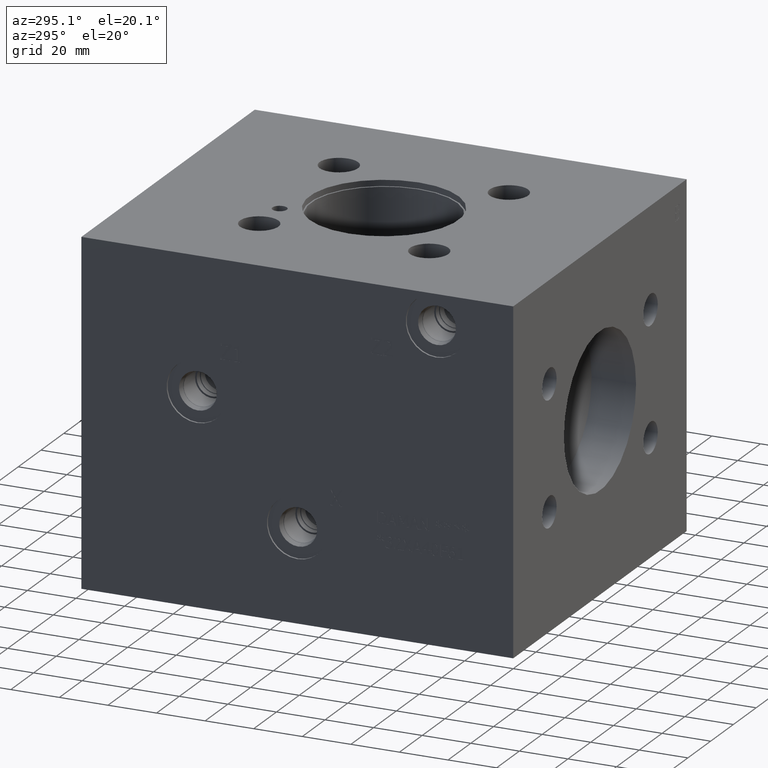
[diagram: clean part render]
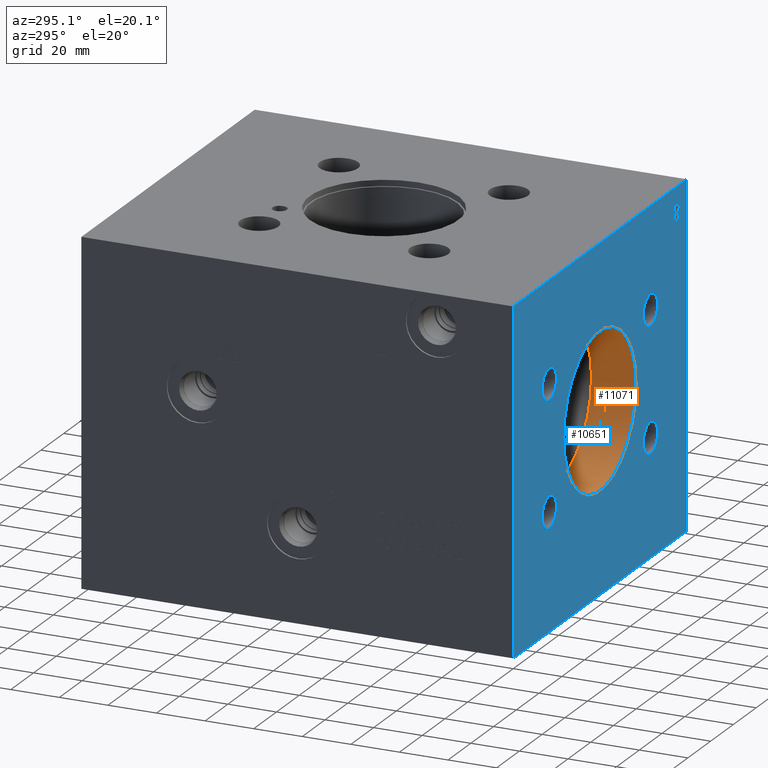
[diagram: same view with the hole feature highlighted: cylindrical wall and planar end face, labeled with their STEP entity ids]
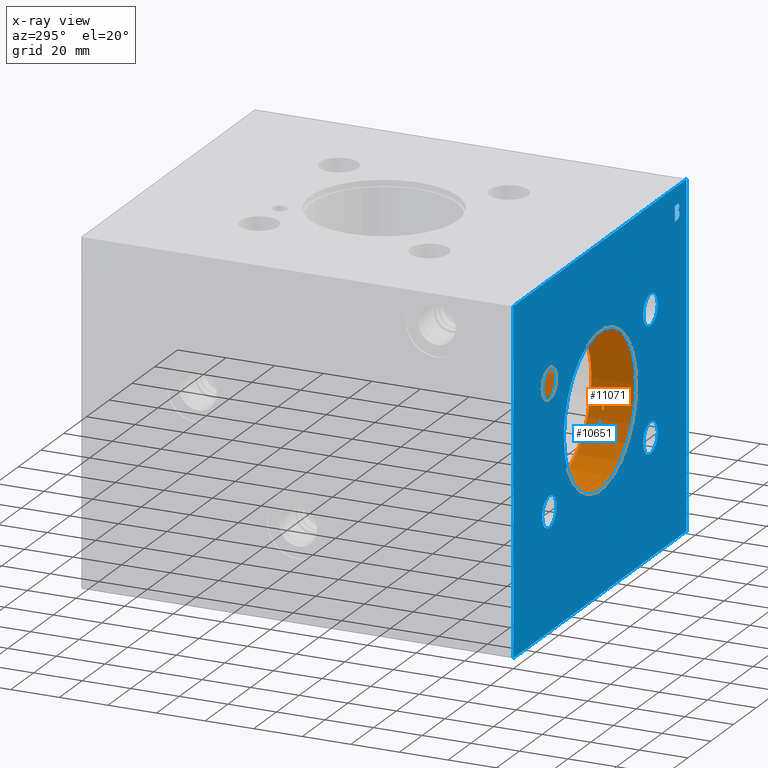
[diagram: x-ray of the same camera — body ghosted, the hole faces saturated]
A machine part, auxiliary view. The highlighted faces form one hole feature of diameter 63.5 mm: the cylindrical wall (entity #11071, orange) and its adjacent planar end face (entity #10651, blue) — they share a circular edge in the B-rep.
The next image is the same camera in x-ray (body ghosted, the hole faces saturated) — the bore reads through the body.
Wall:
#31=CYLINDRICAL_SURFACE('',#11637,31.75);
#436=CIRCLE('',#11247,31.75);
#437=CIRCLE('',#11248,31.75);
#487=CIRCLE('',#11635,31.75);
#488=CIRCLE('',#11636,31.75);
#1217=FACE_OUTER_BOUND('',#1846,.T.);
#1846=EDGE_LOOP('',(#9271,#9272,#9273,#9274,#9275,#9276));
#2998=LINE('',#18318,#4087);
#4087=VECTOR('',#13813,31.75);
#4273=VERTEX_POINT('',#14927);
#4274=VERTEX_POINT('',#14928);
#5037=VERTEX_POINT('',#18311);
#5038=VERTEX_POINT('',#18312);
#5370=EDGE_CURVE('',#4273,#4274,#436,.T.);
#5371=EDGE_CURVE('',#4274,#4273,#437,.T.);
#6505=EDGE_CURVE('',#5037,#5038,#487,.T.);
#6507=EDGE_CURVE('',#5038,#5037,#488,.T.);
#6508=EDGE_CURVE('',#4274,#5038,#2998,.T.);
#9271=ORIENTED_EDGE('',*,*,#5370,.F.);
#9272=ORIENTED_EDGE('',*,*,#5371,.F.);
#9273=ORIENTED_EDGE('',*,*,#6508,.T.);
#9274=ORIENTED_EDGE('',*,*,#6505,.F.);
#9275=ORIENTED_EDGE('',*,*,#6507,.F.);
#9276=ORIENTED_EDGE('',*,*,#6508,.F.);
#11071=ADVANCED_FACE('',(#1217),#31,.F.);
#11247=AXIS2_PLACEMENT_3D('',#14929,#12110,#12111);
#11248=AXIS2_PLACEMENT_3D('',#14930,#12112,#12113);
#11635=AXIS2_PLACEMENT_3D('',#18313,#13806,#13807);
#11636=AXIS2_PLACEMENT_3D('',#18316,#13809,#13810);
#11637=AXIS2_PLACEMENT_3D('',#18317,#13811,#13812);
#12110=DIRECTION('center_axis',(0.,1.,0.));
#12111=DIRECTION('ref_axis',(1.,0.,0.));
#12112=DIRECTION('center_axis',(0.,1.,0.));
#12113=DIRECTION('ref_axis',(1.,0.,0.));
#13806=DIRECTION('center_axis',(0.,-1.,0.));
#13807=DIRECTION('ref_axis',(1.,0.,0.));
#13809=DIRECTION('center_axis',(0.,-1.,0.));
#13810=DIRECTION('ref_axis',(1.,0.,0.));
#13811=DIRECTION('center_axis',(0.,-1.,0.));
#13812=DIRECTION('ref_axis',(1.,0.,0.));
#13813=DIRECTION('',(0.,1.,0.));
#14927=CARTESIAN_POINT('',(107.95,0.,73.025));
#14928=CARTESIAN_POINT('',(44.45,0.,73.025));
#14929=CARTESIAN_POINT('Origin',(76.2,0.,73.025));
#14930=CARTESIAN_POINT('Origin',(76.2,0.,73.025));
#18311=CARTESIAN_POINT('',(107.95,18.33087,73.025));
#18312=CARTESIAN_POINT('',(44.45,18.33087,73.025));
#18313=CARTESIAN_POINT('Origin',(76.2,18.33087,73.025));
#18316=CARTESIAN_POINT('Origin',(76.2,18.33087,73.025));
#18317=CARTESIAN_POINT('Origin',(76.2,9.165435,73.025));
#18318=CARTESIAN_POINT('',(44.45,9.165435,73.025));
End face:
#138=B_SPLINE_CURVE_WITH_KNOTS('',2,(#14776,#14777,#14778,#14779),
 .UNSPECIFIED.,.F.,.F.,(3,1,3),(0.,1.,2.),.UNSPECIFIED.);
#140=B_SPLINE_CURVE_WITH_KNOTS('',2,(#14803,#14804,#14805,#14806),
 .UNSPECIFIED.,.F.,.F.,(3,1,3),(0.,1.,2.),.UNSPECIFIED.);
#142=B_SPLINE_CURVE_WITH_KNOTS('',2,(#14822,#14823,#14824,#14825),
 .UNSPECIFIED.,.F.,.F.,(3,1,3),(0.,1.,2.),.UNSPECIFIED.);
#144=B_SPLINE_CURVE_WITH_KNOTS('',2,(#14841,#14842,#14843,#14844),
 .UNSPECIFIED.,.F.,.F.,(3,1,3),(0.,1.,2.),.UNSPECIFIED.);
#146=B_SPLINE_CURVE_WITH_KNOTS('',2,(#14878,#14879,#14880,#14881),
 .UNSPECIFIED.,.F.,.F.,(3,1,3),(0.,1.,2.),.UNSPECIFIED.);
#148=B_SPLINE_CURVE_WITH_KNOTS('',2,(#14896,#14897,#14898,#14899),
 .UNSPECIFIED.,.F.,.F.,(3,1,3),(0.,1.,2.),.UNSPECIFIED.);
#428=CIRCLE('',#11239,6.35);
#429=CIRCLE('',#11240,6.35);
#430=CIRCLE('',#11241,6.35);
#431=CIRCLE('',#11242,6.35);
#432=CIRCLE('',#11243,6.35);
#433=CIRCLE('',#11244,6.35);
#434=CIRCLE('',#11245,6.35);
#435=CIRCLE('',#11246,6.35);
#436=CIRCLE('',#11247,31.75);
#437=CIRCLE('',#11248,31.75);
#676=FACE_BOUND('',#1380,.T.);
#677=FACE_BOUND('',#1381,.T.);
#678=FACE_BOUND('',#1382,.T.);
#679=FACE_BOUND('',#1383,.T.);
#680=FACE_BOUND('',#1384,.T.);
#681=FACE_BOUND('',#1385,.T.);
#797=FACE_OUTER_BOUND('',#1379,.T.);
#1379=EDGE_LOOP('',(#6971,#6972,#6973,#6974));
#1380=EDGE_LOOP('',(#6975,#6976,#6977,#6978,#6979,#6980,#6981,#6982,#6983,
#6984));
#1381=EDGE_LOOP('',(#6985,#6986));
#1382=EDGE_LOOP('',(#6987,#6988));
#1383=EDGE_LOOP('',(#6989,#6990));
#1384=EDGE_LOOP('',(#6991,#6992));
#1385=EDGE_LOOP('',(#6993,#6994));
#2026=LINE('',#14536,#3115);
#2058=LINE('',#14790,#3147);
#2064=LINE('',#14853,#3153);
#2067=LINE('',#14859,#3156);
#2070=LINE('',#14865,#3159);
#2074=LINE('',#14907,#3163);
#2075=LINE('',#14909,#3164);
#2076=LINE('',#14910,#3165);
#3115=VECTOR('',#11983,10.);
#3147=VECTOR('',#12065,10.);
#3153=VECTOR('',#12073,10.);
#3156=VECTOR('',#12078,10.);
#3159=VECTOR('',#12083,10.);
#3163=VECTOR('',#12091,10.);
#3164=VECTOR('',#12092,10.);
#3165=VECTOR('',#12093,10.);
#4193=VERTEX_POINT('',#14534);
#4194=VERTEX_POINT('',#14535);
#4243=VERTEX_POINT('',#14774);
#4244=VERTEX_POINT('',#14775);
#4247=VERTEX_POINT('',#14789);
#4249=VERTEX_POINT('',#14802);
#4251=VERTEX_POINT('',#14821);
#4253=VERTEX_POINT('',#14840);
#4255=VERTEX_POINT('',#14852);
#4257=VERTEX_POINT('',#14858);
#4259=VERTEX_POINT('',#14864);
#4261=VERTEX_POINT('',#14877);
#4263=VERTEX_POINT('',#14906);
#4264=VERTEX_POINT('',#14908);
#4265=VERTEX_POINT('',#14911);
#4266=VERTEX_POINT('',#14912);
#4267=VERTEX_POINT('',#14915);
#4268=VERTEX_POINT('',#14916);
#4269=VERTEX_POINT('',#14919);
#4270=VERTEX_POINT('',#14920);
#4271=VERTEX_POINT('',#14923);
#4272=VERTEX_POINT('',#14924);
#4273=VERTEX_POINT('',#14927);
#4274=VERTEX_POINT('',#14928);
#5265=EDGE_CURVE('',#4193,#4194,#2026,.T.);
#5329=EDGE_CURVE('',#4243,#4244,#138,.T.);
#5333=EDGE_CURVE('',#4247,#4243,#2058,.T.);
#5336=EDGE_CURVE('',#4249,#4247,#140,.T.);
#5339=EDGE_CURVE('',#4251,#4249,#142,.T.);
#5342=EDGE_CURVE('',#4253,#4251,#144,.T.);
#5345=EDGE_CURVE('',#4255,#4253,#2064,.T.);
#5348=EDGE_CURVE('',#4257,#4255,#2067,.T.);
#5351=EDGE_CURVE('',#4259,#4257,#2070,.T.);
#5354=EDGE_CURVE('',#4261,#4259,#146,.T.);
#5357=EDGE_CURVE('',#4244,#4261,#148,.T.);
#5359=EDGE_CURVE('',#4194,#4263,#2074,.T.);
#5360=EDGE_CURVE('',#4264,#4263,#2075,.T.);
#5361=EDGE_CURVE('',#4193,#4264,#2076,.T.);
#5362=EDGE_CURVE('',#4265,#4266,#428,.T.);
#5363=EDGE_CURVE('',#4266,#4265,#429,.T.);
#5364=EDGE_CURVE('',#4267,#4268,#430,.T.);
#5365=EDGE_CURVE('',#4268,#4267,#431,.T.);
#5366=EDGE_CURVE('',#4269,#4270,#432,.T.);
#5367=EDGE_CURVE('',#4270,#4269,#433,.T.);
#5368=EDGE_CURVE('',#4271,#4272,#434,.T.);
#5369=EDGE_CURVE('',#4272,#4271,#435,.T.);
#5370=EDGE_CURVE('',#4273,#4274,#436,.T.);
#5371=EDGE_CURVE('',#4274,#4273,#437,.T.);
#6971=ORIENTED_EDGE('',*,*,#5265,.T.);
#6972=ORIENTED_EDGE('',*,*,#5359,.T.);
#6973=ORIENTED_EDGE('',*,*,#5360,.F.);
#6974=ORIENTED_EDGE('',*,*,#5361,.F.);
#6975=ORIENTED_EDGE('',*,*,#5329,.T.);
#6976=ORIENTED_EDGE('',*,*,#5357,.T.);
#6977=ORIENTED_EDGE('',*,*,#5354,.T.);
#6978=ORIENTED_EDGE('',*,*,#5351,.T.);
#6979=ORIENTED_EDGE('',*,*,#5348,.T.);
#6980=ORIENTED_EDGE('',*,*,#5345,.T.);
#6981=ORIENTED_EDGE('',*,*,#5342,.T.);
#6982=ORIENTED_EDGE('',*,*,#5339,.T.);
#6983=ORIENTED_EDGE('',*,*,#5336,.T.);
#6984=ORIENTED_EDGE('',*,*,#5333,.T.);
#6985=ORIENTED_EDGE('',*,*,#5362,.T.);
#6986=ORIENTED_EDGE('',*,*,#5363,.T.);
#6987=ORIENTED_EDGE('',*,*,#5364,.T.);
#6988=ORIENTED_EDGE('',*,*,#5365,.T.);
#6989=ORIENTED_EDGE('',*,*,#5366,.T.);
#6990=ORIENTED_EDGE('',*,*,#5367,.T.);
#6991=ORIENTED_EDGE('',*,*,#5368,.T.);
#6992=ORIENTED_EDGE('',*,*,#5369,.T.);
#6993=ORIENTED_EDGE('',*,*,#5370,.T.);
#6994=ORIENTED_EDGE('',*,*,#5371,.T.);
#9858=PLANE('',#11238);
#10651=ADVANCED_FACE('',(#797,#676,#677,#678,#679,#680,#681),#9858,.T.);
#11238=AXIS2_PLACEMENT_3D('',#14905,#12089,#12090);
#11239=AXIS2_PLACEMENT_3D('',#14913,#12094,#12095);
#11240=AXIS2_PLACEMENT_3D('',#14914,#12096,#12097);
#11241=AXIS2_PLACEMENT_3D('',#14917,#12098,#12099);
#11242=AXIS2_PLACEMENT_3D('',#14918,#12100,#12101);
#11243=AXIS2_PLACEMENT_3D('',#14921,#12102,#12103);
#11244=AXIS2_PLACEMENT_3D('',#14922,#12104,#12105);
#11245=AXIS2_PLACEMENT_3D('',#14925,#12106,#12107);
#11246=AXIS2_PLACEMENT_3D('',#14926,#12108,#12109);
#11247=AXIS2_PLACEMENT_3D('',#14929,#12110,#12111);
#11248=AXIS2_PLACEMENT_3D('',#14930,#12112,#12113);
#11983=DIRECTION('',(1.,0.,0.));
#12065=DIRECTION('',(0.,0.,-1.));
#12073=DIRECTION('',(1.,0.,0.));
#12078=DIRECTION('',(0.,0.,1.));
#12083=DIRECTION('',(-1.,0.,0.));
#12089=DIRECTION('center_axis',(0.,-1.,0.));
#12090=DIRECTION('ref_axis',(1.,0.,0.));
#12091=DIRECTION('',(0.,0.,1.));
#12092=DIRECTION('',(1.,0.,0.));
#12093=DIRECTION('',(0.,0.,1.));
#12094=DIRECTION('center_axis',(0.,1.,0.));
#12095=DIRECTION('ref_axis',(1.,0.,0.));
#12096=DIRECTION('center_axis',(0.,1.,0.));
#12097=DIRECTION('ref_axis',(1.,0.,0.));
#12098=DIRECTION('center_axis',(0.,1.,0.));
#12099=DIRECTION('ref_axis',(1.,0.,0.));
#12100=DIRECTION('center_axis',(0.,1.,0.));
#12101=DIRECTION('ref_axis',(1.,0.,0.));
#12102=DIRECTION('center_axis',(0.,1.,0.));
#12103=DIRECTION('ref_axis',(1.,0.,0.));
#12104=DIRECTION('center_axis',(0.,1.,0.));
#12105=DIRECTION('ref_axis',(1.,0.,0.));
#12106=DIRECTION('center_axis',(0.,1.,0.));
#12107=DIRECTION('ref_axis',(1.,0.,0.));
#12108=DIRECTION('center_axis',(0.,1.,0.));
#12109=DIRECTION('ref_axis',(1.,0.,0.));
#12110=DIRECTION('center_axis',(0.,1.,0.));
#12111=DIRECTION('ref_axis',(1.,0.,0.));
#12112=DIRECTION('center_axis',(0.,1.,0.));
#12113=DIRECTION('ref_axis',(1.,0.,0.));
#14534=CARTESIAN_POINT('',(0.,0.,0.));
#14535=CARTESIAN_POINT('',(152.4,0.,0.));
#14536=CARTESIAN_POINT('',(0.,0.,0.));
#14774=CARTESIAN_POINT('',(145.049128792777,0.,129.736314776805));
#14775=CARTESIAN_POINT('',(146.237824074762,0.,128.15653360118));
#14776=CARTESIAN_POINT('Ctrl Pts',(145.049128792777,0.,129.736314776805));
#14777=CARTESIAN_POINT('Ctrl Pts',(145.615174165151,0.,129.581938766158));
#14778=CARTESIAN_POINT('Ctrl Pts',(146.237824074762,0.,128.763745909726));
#14779=CARTESIAN_POINT('Ctrl Pts',(146.237824074762,0.,128.15653360118));
#14789=CARTESIAN_POINT('',(145.049128792777,0.,129.767189978935));
#14790=CARTESIAN_POINT('',(145.049128792777,0.,64.8835949894675));
#14802=CARTESIAN_POINT('',(145.93936378751,0.,131.125698872633));
#14803=CARTESIAN_POINT('Ctrl Pts',(145.93936378751,0.,131.125698872633));
#14804=CARTESIAN_POINT('Ctrl Pts',(145.93936378751,0.,130.678008441755));
#14805=CARTESIAN_POINT('Ctrl Pts',(145.465944021525,0.,129.967878792777));
#14806=CARTESIAN_POINT('Ctrl Pts',(145.049128792777,0.,129.767189978935));
#14821=CARTESIAN_POINT('',(145.280692808748,0.,132.298956553553));
#14822=CARTESIAN_POINT('Ctrl Pts',(145.280692808748,0.,132.298956553553));
#14823=CARTESIAN_POINT('Ctrl Pts',(145.625465899194,0.,132.118851207798));
#14824=CARTESIAN_POINT('Ctrl Pts',(145.93936378751,0.,131.527076500316));
#14825=CARTESIAN_POINT('Ctrl Pts',(145.93936378751,0.,131.125698872633));
#14840=CARTESIAN_POINT('',(143.613431893755,0.,132.556249904633));
#14841=CARTESIAN_POINT('Ctrl Pts',(143.613431893755,0.,132.556249904633));
#14842=CARTESIAN_POINT('Ctrl Pts',(144.292686340604,0.,132.556249904633));
#14843=CARTESIAN_POINT('Ctrl Pts',(144.971940787453,0.,132.468770165266));
#14844=CARTESIAN_POINT('Ctrl Pts',(145.280692808748,0.,132.298956553553));
#14852=CARTESIAN_POINT('',(141.930733377698,0.,132.556249904633));
#14853=CARTESIAN_POINT('',(70.9653666888489,0.,132.556249904633));
#14858=CARTESIAN_POINT('',(141.930733377698,0.,126.20625));
#14859=CARTESIAN_POINT('',(141.930733377698,0.,63.103125));
#14864=CARTESIAN_POINT('',(143.752370303338,0.,126.20625));
#14865=CARTESIAN_POINT('',(71.876185151669,0.,126.20625));
#14877=CARTESIAN_POINT('',(145.579153096,0.,126.720836702158));
#14878=CARTESIAN_POINT('Ctrl Pts',(145.579153096,0.,126.720836702158));
#14879=CARTESIAN_POINT('Ctrl Pts',(145.218942404489,0.,126.442959882993));
#14880=CARTESIAN_POINT('Ctrl Pts',(144.400749548057,0.,126.20625));
#14881=CARTESIAN_POINT('Ctrl Pts',(143.752370303338,0.,126.20625));
#14896=CARTESIAN_POINT('Ctrl Pts',(146.237824074762,0.,128.15653360118));
#14897=CARTESIAN_POINT('Ctrl Pts',(146.237824074762,0.,127.683113835194));
#14898=CARTESIAN_POINT('Ctrl Pts',(145.877613383251,0.,126.957546585151));
#14899=CARTESIAN_POINT('Ctrl Pts',(145.579153096,0.,126.720836702158));
#14905=CARTESIAN_POINT('Origin',(0.,0.,0.));
#14906=CARTESIAN_POINT('',(152.4,0.,139.7));
#14907=CARTESIAN_POINT('',(152.4,0.,0.));
#14908=CARTESIAN_POINT('',(0.,0.,139.7));
#14909=CARTESIAN_POINT('',(0.,0.,139.7));
#14910=CARTESIAN_POINT('',(0.,0.,0.));
#14911=CARTESIAN_POINT('',(38.1,0.,98.425));
#14912=CARTESIAN_POINT('',(25.4,2.22044604925031E-15,98.425));
#14913=CARTESIAN_POINT('Origin',(31.75,0.,98.425));
#14914=CARTESIAN_POINT('Origin',(31.75,0.,98.425));
#14915=CARTESIAN_POINT('',(127.,0.,47.625));
#14916=CARTESIAN_POINT('',(114.3,2.22044604925031E-15,47.625));
#14917=CARTESIAN_POINT('Origin',(120.65,0.,47.625));
#14918=CARTESIAN_POINT('Origin',(120.65,0.,47.625));
#14919=CARTESIAN_POINT('',(38.1,0.,47.625));
#14920=CARTESIAN_POINT('',(25.4,2.22044604925031E-15,47.625));
#14921=CARTESIAN_POINT('Origin',(31.75,0.,47.625));
#14922=CARTESIAN_POINT('Origin',(31.75,0.,47.625));
#14923=CARTESIAN_POINT('',(127.,0.,98.4250039));
#14924=CARTESIAN_POINT('',(114.3,2.22044604925031E-15,98.4250039));
#14925=CARTESIAN_POINT('Origin',(120.65,0.,98.4250039));
#14926=CARTESIAN_POINT('Origin',(120.65,0.,98.4250039));
#14927=CARTESIAN_POINT('',(107.95,0.,73.025));
#14928=CARTESIAN_POINT('',(44.45,0.,73.025));
#14929=CARTESIAN_POINT('Origin',(76.2,0.,73.025));
#14930=CARTESIAN_POINT('Origin',(76.2,0.,73.025));